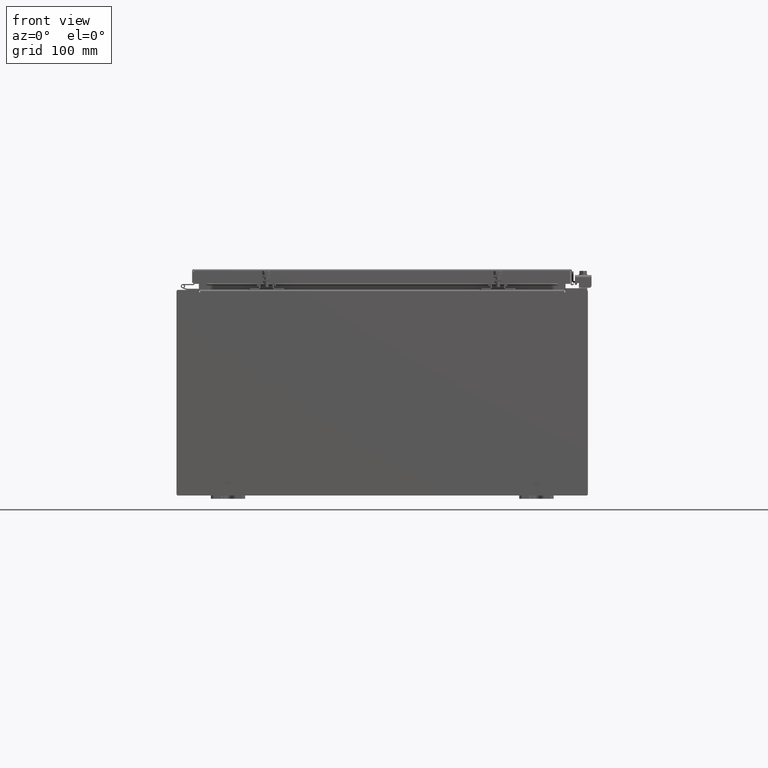
[diagram: clean part render]
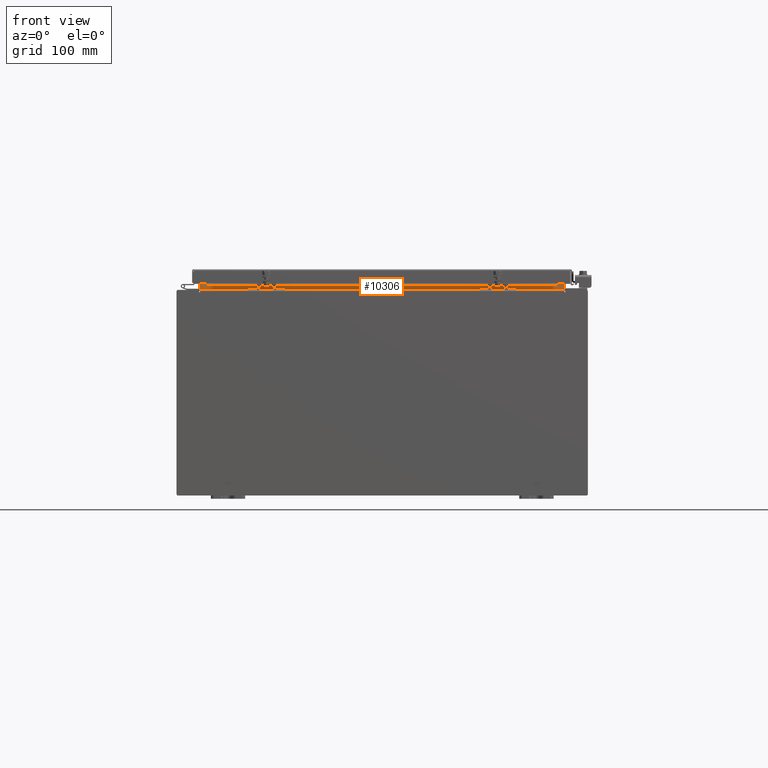
[diagram: same view with one face highlighted and labeled with its STEP entity id]
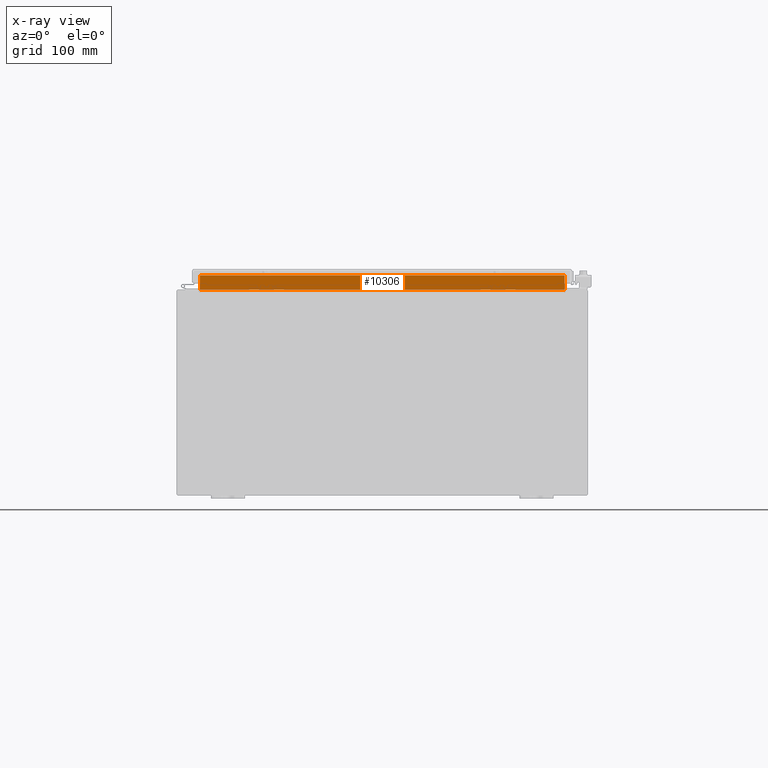
[diagram: x-ray of the same camera — body ghosted, the highlighted face saturated]
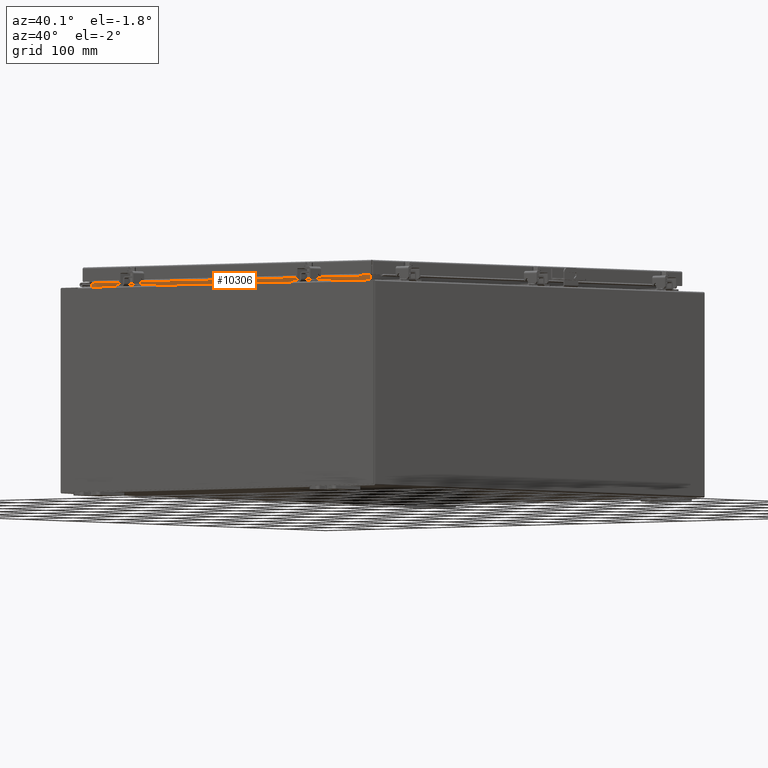
[diagram: same view with one face highlighted and labeled with its STEP entity id]
A machine part, front view. The second image highlights one B-rep face of the part: STEP entity #10306.
The next image is the same camera in x-ray: the body ghosted, the highlighted face saturated — about 0% of this face is hidden behind the body in this view.
A second angle (auxiliary view) of the same face is appended — the face is thin or edge-on in the first view.
In plain terms, the highlighted planar face has unit normal (0, -1, 0).
Its self-contained STEP definition (entity closure, byte-faithful):
#1128 = VECTOR ( 'NONE', #32185, 39.37007874015748100 ) ;
#2691 = CARTESIAN_POINT ( 'NONE',  ( 10.63720000000000200, -1.300300000000000700, 6.925300000000007100 ) ) ;
#3127 = EDGE_CURVE ( 'NONE', #24045, #12899, #7163, .T. ) ;
#3782 = EDGE_LOOP ( 'NONE', ( #29995, #6827, #22218, #14032 ) ) ;
#4085 = AXIS2_PLACEMENT_3D ( 'NONE', #13165, #12563, #12521 ) ;
#4420 = LINE ( 'NONE', #28515, #29212 ) ;
#6088 = EDGE_CURVE ( 'NONE', #37208, #26200, #12216, .T. ) ;
#6827 = ORIENTED_EDGE ( 'NONE', *, *, #26222, .F. ) ;
#7163 = LINE ( 'NONE', #26358, #19764 ) ;
#7472 = DIRECTION ( 'NONE',  ( -1.000000000000000000, -0.0000000000000000000, -0.0000000000000000000 ) ) ;
#9101 = CARTESIAN_POINT ( 'NONE',  ( 10.63719999999999600, -1.300300000000000900, 6.837600000000007200 ) ) ;
#9275 = CARTESIAN_POINT ( 'NONE',  ( 10.63720000000000200, -1.300300000000000700, 6.837600000000007200 ) ) ;
#10306 = ADVANCED_FACE ( 'NONE', ( #30402 ), #12655, .T. ) ;
#10832 = CARTESIAN_POINT ( 'NONE',  ( -10.63719999999998800, -1.300300000000000900, 6.837600000000007200 ) ) ;
#12216 = LINE ( 'NONE', #2691, #1128 ) ;
#12521 = DIRECTION ( 'NONE',  ( 0.0000000000000000000, -8.857174949738224200E-016, 1.000000000000000000 ) ) ;
#12563 = DIRECTION ( 'NONE',  ( -9.098806308417904000E-032, 1.000000000000000000, 8.857174949738224200E-016 ) ) ;
#12655 = PLANE ( 'NONE',  #4085 ) ;
#12899 = VERTEX_POINT ( 'NONE', #36782 ) ;
#13165 = CARTESIAN_POINT ( 'NONE',  ( 1.183117784283575500E-031, -1.300299999999994700, -1.151698458714456500E-015 ) ) ;
#14032 = ORIENTED_EDGE ( 'NONE', *, *, #23919, .F. ) ;
#17250 = DIRECTION ( 'NONE',  ( 1.000000000000000000, 1.027280861002618300E-016, 1.027280861002618300E-016 ) ) ;
#19764 = VECTOR ( 'NONE', #26013, 39.37007874015748100 ) ;
#22218 = ORIENTED_EDGE ( 'NONE', *, *, #6088, .F. ) ;
#23919 = EDGE_CURVE ( 'NONE', #12899, #37208, #4420, .T. ) ;
#24045 = VERTEX_POINT ( 'NONE', #10832 ) ;
#26013 = DIRECTION ( 'NONE',  ( -0.0000000000000000000, 8.857174949738214300E-016, -1.000000000000000000 ) ) ;
#26200 = VERTEX_POINT ( 'NONE', #9275 ) ;
#26222 = EDGE_CURVE ( 'NONE', #26200, #24045, #36448, .T. ) ;
#26358 = CARTESIAN_POINT ( 'NONE',  ( -10.63720000000000200, -1.300299999999999800, 6.000000000000003600 ) ) ;
#28515 = CARTESIAN_POINT ( 'NONE',  ( -10.63720000000000200, -1.300299999999999800, 6.013000000000003500 ) ) ;
#28706 = CARTESIAN_POINT ( 'NONE',  ( 10.63720000000000400, -1.300299999999999800, 6.013000000000005200 ) ) ;
#29212 = VECTOR ( 'NONE', #17250, 39.37007874015748100 ) ;
#29995 = ORIENTED_EDGE ( 'NONE', *, *, #3127, .F. ) ;
#30402 = FACE_OUTER_BOUND ( 'NONE', #3782, .T. ) ;
#32185 = DIRECTION ( 'NONE',  ( -0.0000000000000000000, -8.857174949738224200E-016, 1.000000000000000000 ) ) ;
#36082 = VECTOR ( 'NONE', #7472, 39.37007874015748100 ) ;
#36448 = LINE ( 'NONE', #9101, #36082 ) ;
#36782 = CARTESIAN_POINT ( 'NONE',  ( -10.63720000000000400, -1.300299999999999800, 6.013000000000005200 ) ) ;
#37208 = VERTEX_POINT ( 'NONE', #28706 ) ;